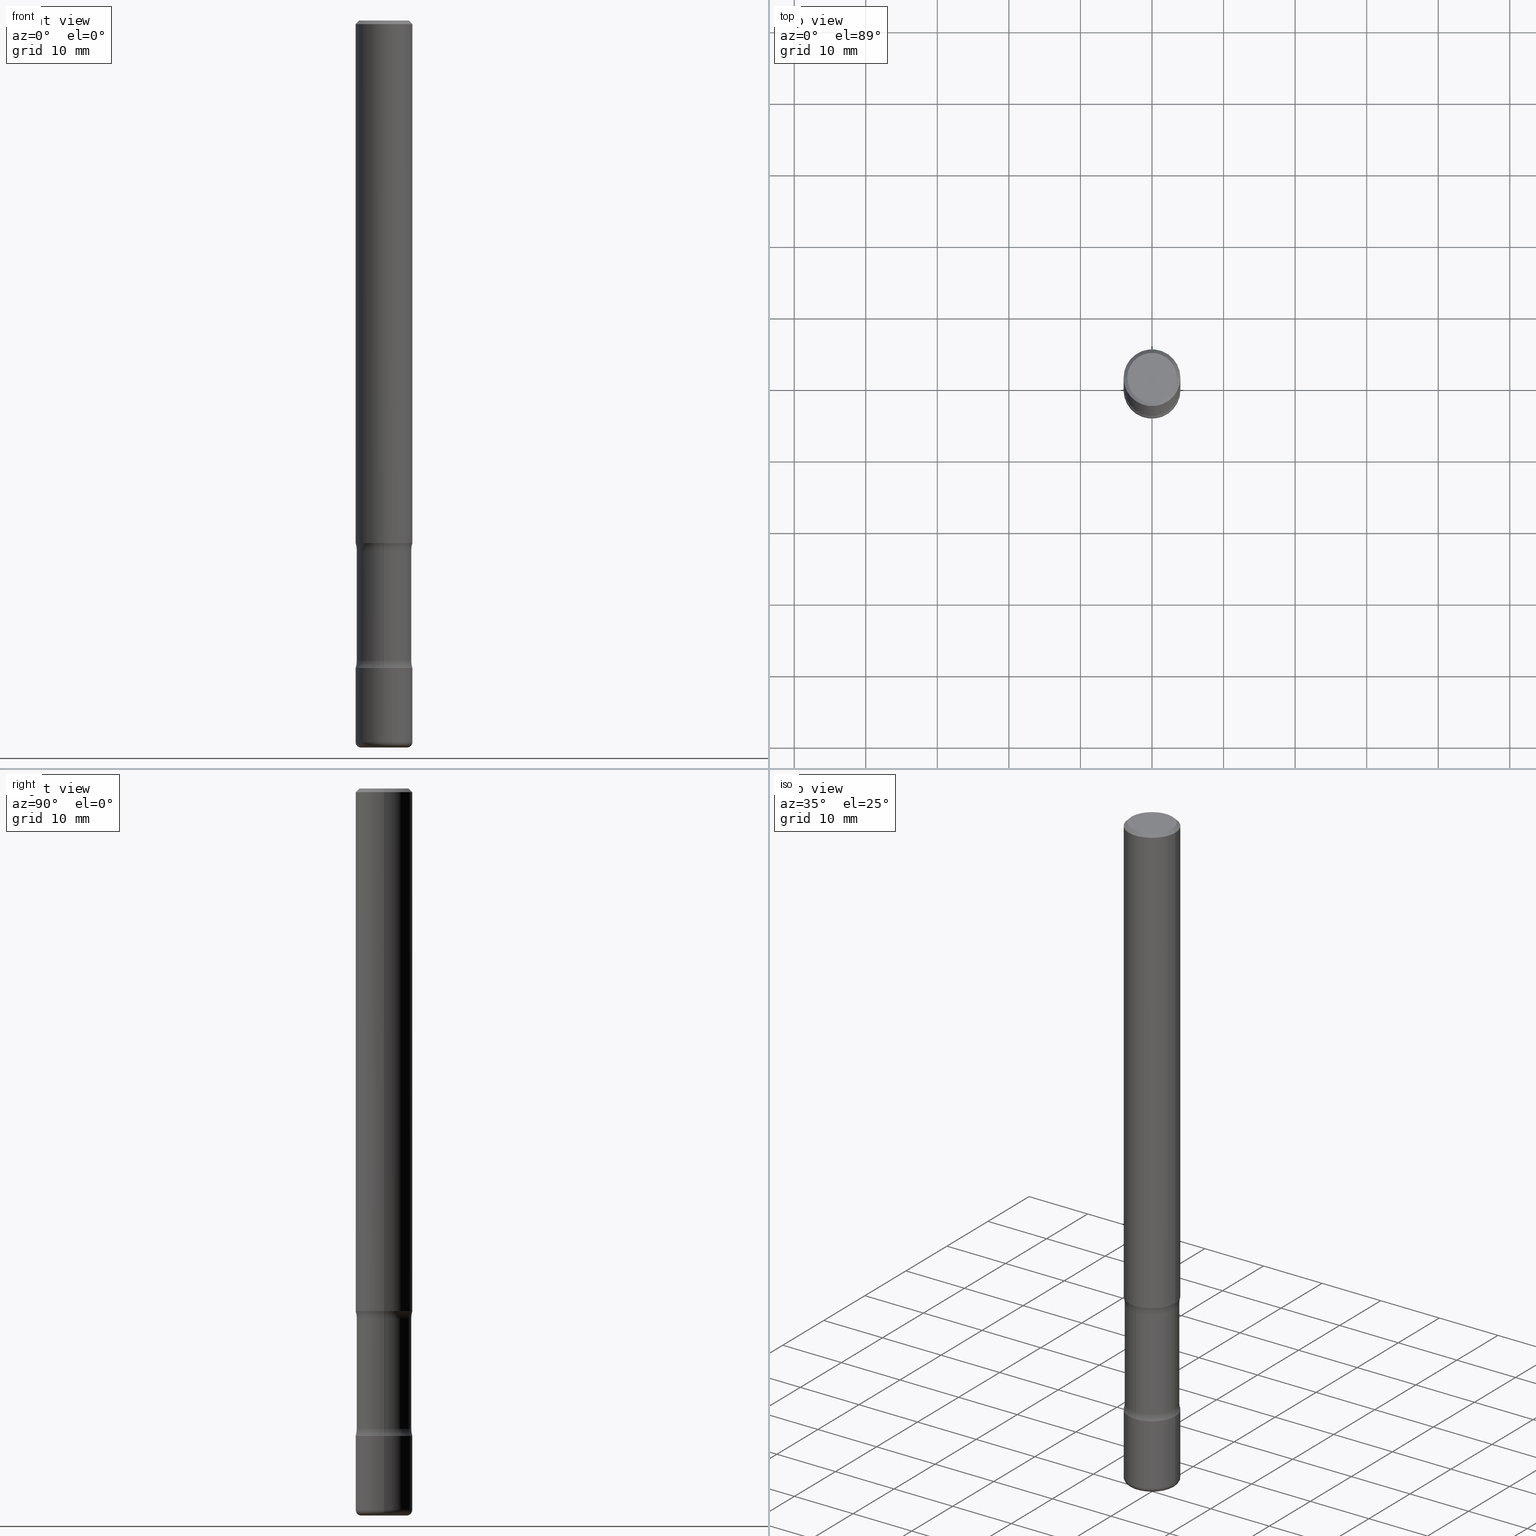
[diagram: canonical four-view strip — front | top / right | iso, engineering-drawing reading convention]
A machine part, canonical four-view strip (front | top / right | iso — engineering-drawing reading convention). The complete STEP part file that produces these views, byte-faithful:
ISO-10303-21;
HEADER;
FILE_DESCRIPTION (( 'STEP AP203' ),
    '1' );
FILE_NAME ('32823.STEP',
    '2023-03-11T07:04:22',
    ( '' ),
    ( '' ),
    'SwSTEP 2.0',
    'SolidWorks 2022',
    '' );
FILE_SCHEMA (( 'CONFIG_CONTROL_DESIGN' ));
ENDSEC;

DATA;
#1 = AXIS2_PLACEMENT_3D ( 'NONE', #409, #658, #91 ) ;
#2 = VECTOR ( 'NONE', #72, 39.37007874015748143 ) ;
#3 = VERTEX_POINT ( 'NONE', #272 ) ;
#4 = PRODUCT ( '32823', '32823', '', ( #490 ) ) ;
#5 = DIRECTION ( 'NONE',  ( 1.000000000000000000, -6.982962677686266711E-15, 4.876176775795936353E-29 ) ) ;
#6 = DIRECTION ( 'NONE',  ( 1.000000000000000000, -6.982962677686261977E-15, 0.000000000000000000 ) ) ;
#7 = ORIENTED_EDGE ( 'NONE', *, *, #493, .T. ) ;
#8 = EDGE_CURVE ( 'NONE', #130, #629, #771, .T. ) ;
#9 = DIRECTION ( 'NONE',  ( -2.438088387897960049E-29, 3.491481338843145188E-15, 1.000000000000000000 ) ) ;
#10 = EDGE_LOOP ( 'NONE', ( #670, #105, #129, #269 ) ) ;
#11 = AXIS2_PLACEMENT_3D ( 'NONE', #735, #112, #371 ) ;
#12 = AXIS2_PLACEMENT_3D ( 'NONE', #261, #185, #232 ) ;
#13 = CALENDAR_DATE ( 2023, 11, 3 ) ;
#14 = EDGE_LOOP ( 'NONE', ( #19, #492 ) ) ;
#15 = EDGE_CURVE ( 'NONE', #85, #560, #595, .T. ) ;
#16 = APPROVAL_ROLE ( '' ) ;
#17 = DIRECTION ( 'NONE',  ( -2.447740878910250107E-29, 3.488227601382434089E-15, 1.000000000000000000 ) ) ;
#18 = CARTESIAN_POINT ( 'NONE',  ( -0.1262500000000000011, -1.290991152102879186E-14, -4.000000000000000888 ) ) ;
#19 = ORIENTED_EDGE ( 'NONE', *, *, #471, .F. ) ;
#20 = CARTESIAN_POINT ( 'NONE',  ( -0.1562500000000000000, -3.943696213350291140E-15, -2.875000000000000000 ) ) ;
#21 = ORIENTED_EDGE ( 'NONE', *, *, #730, .T. ) ;
#22 = CARTESIAN_POINT ( 'NONE',  ( -1.029074699665631363E-15, -0.1500000000000139000, -3.996136889874975395 ) ) ;
#23 = AXIS2_PLACEMENT_3D ( 'NONE', #805, #448, #443 ) ;
#24 = SHAPE_DEFINITION_REPRESENTATION ( #251, #417 ) ;
#25 = AXIS2_PLACEMENT_3D ( 'NONE', #108, #432, #555 ) ;
#26 = EDGE_CURVE ( 'NONE', #431, #55, #76, .T. ) ;
#27 = CARTESIAN_POINT ( 'NONE',  ( 7.126172491530842788E-29, -1.017428568650229871E-14, -2.914031237489990378 ) ) ;
#28 = DIRECTION ( 'NONE',  ( 6.982962677686265133E-15, 1.000000000000000000, -3.488227601382433694E-15 ) ) ;
#29 = EDGE_LOOP ( 'NONE', ( #352, #201, #189, #82 ) ) ;
#30 = ORIENTED_EDGE ( 'NONE', *, *, #131, .F. ) ;
#31 = DIRECTION ( 'NONE',  ( 2.445468806185136597E-29, -3.491481338843145583E-15, -1.000000000000000000 ) ) ;
#32 = DIRECTION ( 'NONE',  ( 1.000000000000000000, -6.982962677686266711E-15, 4.876176775795936353E-29 ) ) ;
#33 = DIRECTION ( 'NONE',  ( -2.445468806185136597E-29, 3.491481338843145583E-15, 1.000000000000000000 ) ) ;
#34 = ADVANCED_FACE ( 'NONE', ( #644 ), #73, .T. ) ;
#35 = AXIS2_PLACEMENT_3D ( 'NONE', #605, #434, #614 ) ;
#36 = AXIS2_PLACEMENT_3D ( 'NONE', #721, #402, #532 ) ;
#37 = DIRECTION ( 'NONE',  ( 1.000000000000000000, -6.982962677686262766E-15, 0.000000000000000000 ) ) ;
#38 = DIRECTION ( 'NONE',  ( 6.982962677686265133E-15, 1.000000000000000000, -3.488227601382433694E-15 ) ) ;
#39 = VERTEX_POINT ( 'NONE', #18 ) ;
#40 = DIRECTION ( 'NONE',  ( 6.982962677686265133E-15, 1.000000000000000000, -3.496765431890256920E-15 ) ) ;
#41 = CARTESIAN_POINT ( 'NONE',  ( 9.708511160554992872E-29, -1.386118091520728738E-14, -3.970000000000000195 ) ) ;
#42 = EDGE_CURVE ( 'NONE', #39, #142, #559, .T. ) ;
#43 = CARTESIAN_POINT ( 'NONE',  ( 8.711982622034549126E-29, -1.243840226962870597E-14, -3.562500000000000000 ) ) ;
#44 = COORDINATED_UNIVERSAL_TIME_OFFSET ( 5, 0, .BEHIND. ) ;
#45 = ORIENTED_EDGE ( 'NONE', *, *, #425, .T. ) ;
#46 = EDGE_LOOP ( 'NONE', ( #674, #509, #567, #389 ) ) ;
#47 = DIRECTION ( 'NONE',  ( 6.982962677686265133E-15, 1.000000000000000000, -3.496765431890256920E-15 ) ) ;
#48 = EDGE_LOOP ( 'NONE', ( #575, #774 ) ) ;
#49 = EDGE_CURVE ( 'NONE', #502, #184, #151, .T. ) ;
#50 = TOROIDAL_SURFACE ( 'NONE', #11, 0.2749999999999998557, 0.1250000000000000000 ) ;
#51 = DIRECTION ( 'NONE',  ( 2.447740878910250667E-29, -3.488227601382433694E-15, -1.000000000000000000 ) ) ;
#52 = AXIS2_PLACEMENT_3D ( 'NONE', #41, #236, #297 ) ;
#53 = CARTESIAN_POINT ( 'NONE',  ( -0.1562499999999997780, 1.021258291611614495E-15, -0.02000000000000003511 ) ) ;
#54 = FACE_OUTER_BOUND ( 'NONE', #137, .T. ) ;
#55 = VERTEX_POINT ( 'NONE', #87 ) ;
#56 = DIRECTION ( 'NONE',  ( 2.447740878910250667E-29, -3.488227601382433694E-15, -1.000000000000000000 ) ) ;
#57 = EDGE_CURVE ( 'NONE', #599, #586, #591, .T. ) ;
#58 = DIRECTION ( 'NONE',  ( 6.982962677686266711E-15, 1.000000000000000000, -3.642463991552351747E-15 ) ) ;
#59 = CIRCLE ( 'NONE', #570, 0.1499999999999999667 ) ;
#60 = CARTESIAN_POINT ( 'NONE',  ( 0.1562500000000001388, -1.495226883359576577E-14, -3.970000000000000195 ) ) ;
#61 = CARTESIAN_POINT ( 'NONE',  ( 9.781875224740547508E-29, -1.396592535537258391E-14, -4.000000000000000888 ) ) ;
#62 = CONICAL_SURFACE ( 'NONE', #622, 0.1562499999999997780, 0.7853981633974485010 ) ;
#63 = EDGE_CURVE ( 'NONE', #292, #629, #403, .T. ) ;
#64 = DIRECTION ( 'NONE',  ( 1.000000000000000000, -6.982962677686265133E-15, 0.000000000000000000 ) ) ;
#65 = DIRECTION ( 'NONE',  ( 1.000000000000000000, -6.982962677686261977E-15, 0.000000000000000000 ) ) ;
#66 = ORIENTED_EDGE ( 'NONE', *, *, #216, .T. ) ;
#67 = DIRECTION ( 'NONE',  ( 6.982962677686265133E-15, 1.000000000000000000, -3.496765431890256920E-15 ) ) ;
#68 = ORIENTED_EDGE ( 'NONE', *, *, #216, .F. ) ;
#69 = ADVANCED_FACE ( 'NONE', ( #339 ), #681, .T. ) ;
#70 = DIRECTION ( 'NONE',  ( -6.982962677686265922E-15, -1.000000000000000000, 0.000000000000000000 ) ) ;
#71 = LINE ( 'NONE', #696, #302 ) ;
#72 = DIRECTION ( 'NONE',  ( -2.445468806185136877E-29, 3.491481338843145188E-15, 1.000000000000000000 ) ) ;
#73 = PLANE ( 'NONE',  #635 ) ;
#74 = DIRECTION ( 'NONE',  ( 1.000000000000000000, -6.982962677686264344E-15, 4.883557194083112340E-29 ) ) ;
#75 = ORIENTED_EDGE ( 'NONE', *, *, #233, .T. ) ;
#76 = CIRCLE ( 'NONE', #546, 0.1250000000000000000 ) ;
#77 = AXIS2_PLACEMENT_3D ( 'NONE', #756, #706, #508 ) ;
#78 = AXIS2_PLACEMENT_3D ( 'NONE', #682, #449, #70 ) ;
#79 = PERSON_AND_ORGANIZATION ( #553, #214 ) ;
#80 = DIRECTION ( 'NONE',  ( -2.445468806185136597E-29, 3.491481338843145583E-15, 1.000000000000000000 ) ) ;
#81 = EDGE_CURVE ( 'NONE', #701, #742, #689, .T. ) ;
#82 = ORIENTED_EDGE ( 'NONE', *, *, #425, .F. ) ;
#83 = EDGE_CURVE ( 'NONE', #707, #791, #198, .T. ) ;
#84 = CARTESIAN_POINT ( 'NONE',  ( 7.029160767783751512E-29, -1.004024579367828384E-14, -2.875000000000000000 ) ) ;
#85 = VERTEX_POINT ( 'NONE', #504 ) ;
#86 = ORIENTED_EDGE ( 'NONE', *, *, #718, .F. ) ;
#87 = CARTESIAN_POINT ( 'NONE',  ( -0.1562499999999999722, -1.132817924500354943E-14, -3.562500000000000000 ) ) ;
#88 = CARTESIAN_POINT ( 'NONE',  ( 7.124699123342455301E-29, -1.017639563360698075E-14, -2.914031237489990378 ) ) ;
#89 = EDGE_CURVE ( 'NONE', #301, #184, #71, .T. ) ;
#90 = DATE_TIME_ROLE ( 'classification_date' ) ;
#91 = DIRECTION ( 'NONE',  ( 1.000000000000000000, -6.982962677686262766E-15, 0.000000000000000000 ) ) ;
#92 = DIRECTION ( 'NONE',  ( -2.445468806185136597E-29, 3.491481338843145583E-15, 1.000000000000000000 ) ) ;
#93 = CYLINDRICAL_SURFACE ( 'NONE', #95, 0.1499999999999999389 ) ;
#94 = CARTESIAN_POINT ( 'NONE',  ( 8.616532948285975175E-29, -1.230212543230045036E-14, -3.523468762510010066 ) ) ;
#95 = AXIS2_PLACEMENT_3D ( 'NONE', #455, #664, #645 ) ;
#96 = AXIS2_PLACEMENT_3D ( 'NONE', #165, #195, #368 ) ;
#97 = LOCAL_TIME ( 2, 4, 22.00000000000000000, #413 ) ;
#98 = DIRECTION ( 'NONE',  ( 1.000000000000000000, -6.982962677686266711E-15, 4.876176775795935232E-29 ) ) ;
#99 = EDGE_LOOP ( 'NONE', ( #86, #734, #485, #414 ) ) ;
#100 = CALENDAR_DATE ( 2023, 11, 3 ) ;
#101 = FACE_OUTER_BOUND ( 'NONE', #779, .T. ) ;
#102 = CARTESIAN_POINT ( 'NONE',  ( -0.1562500000000000000, -1.203956856779284013E-14, -3.562500000000000000 ) ) ;
#103 = DIRECTION ( 'NONE',  ( 1.000000000000000000, -6.982962677686262766E-15, 0.000000000000000000 ) ) ;
#104 = CARTESIAN_POINT ( 'NONE',  ( 0.1562500000000000000, -1.352949018801718435E-14, -3.562500000000000000 ) ) ;
#105 = ORIENTED_EDGE ( 'NONE', *, *, #752, .T. ) ;
#106 = ORIENTED_EDGE ( 'NONE', *, *, #233, .F. ) ;
#107 = AXIS2_PLACEMENT_3D ( 'NONE', #296, #117, #552 ) ;
#108 = CARTESIAN_POINT ( 'NONE',  ( 8.616532948285975175E-29, -1.230212543230045036E-14, -3.523468762510010066 ) ) ;
#109 = CIRCLE ( 'NONE', #609, 0.1562500000000000000 ) ;
#110 = AXIS2_PLACEMENT_3D ( 'NONE', #765, #513, #5 ) ;
#111 = DIRECTION ( 'NONE',  ( 1.000000000000000000, -6.860497997771530774E-15, 4.840838726415807908E-29 ) ) ;
#112 = DIRECTION ( 'NONE',  ( -2.445468806185136597E-29, 3.491481338843145583E-15, 1.000000000000000000 ) ) ;
#113 = PERSON_AND_ORGANIZATION ( #553, #214 ) ;
#114 = ORIENTED_EDGE ( 'NONE', *, *, #42, .T. ) ;
#115 = EDGE_CURVE ( 'NONE', #573, #152, #786, .T. ) ;
#116 = EDGE_LOOP ( 'NONE', ( #683, #424, #328, #749 ) ) ;
#117 = DIRECTION ( 'NONE',  ( 2.438088387897960049E-29, -3.491481338843145188E-15, -1.000000000000000000 ) ) ;
#118 = CARTESIAN_POINT ( 'NONE',  ( 7.029160767783751512E-29, -1.004024579367828384E-14, -2.875000000000000000 ) ) ;
#119 =( LENGTH_UNIT ( ) NAMED_UNIT ( * ) SI_UNIT ( $, .METRE. ) );
#120 = CC_DESIGN_DATE_AND_TIME_ASSIGNMENT ( #745, #433, ( #143 ) ) ;
#121 = FACE_OUTER_BOUND ( 'NONE', #514, .T. ) ;
#122 = CIRCLE ( 'NONE', #621, 0.1562499999999997780 ) ;
#123 = APPLICATION_PROTOCOL_DEFINITION ( 'international standard', 'config_control_design', 1994, #669 ) ;
#124 = DIRECTION ( 'NONE',  ( 1.000000000000000000, -6.982962677686262766E-15, 0.000000000000000000 ) ) ;
#125 = VECTOR ( 'NONE', #353, 39.37007874015748143 ) ;
#126 = LOCAL_TIME ( 2, 4, 22.00000000000000000, #44 ) ;
#127 = CARTESIAN_POINT ( 'NONE',  ( 8.616444266475845337E-29, -1.230225242970000905E-14, -3.523468762510010066 ) ) ;
#128 = EDGE_CURVE ( 'NONE', #130, #142, #722, .T. ) ;
#129 = ORIENTED_EDGE ( 'NONE', *, *, #655, .T. ) ;
#130 = VERTEX_POINT ( 'NONE', #60 ) ;
#131 = EDGE_CURVE ( 'NONE', #742, #85, #145, .T. ) ;
#132 = CARTESIAN_POINT ( 'NONE',  ( 1.920314736363808937E-15, 0.2749999999999876987, -3.523468762510010954 ) ) ;
#133 = FACE_OUTER_BOUND ( 'NONE', #262, .T. ) ;
#134 = ORIENTED_EDGE ( 'NONE', *, *, #63, .T. ) ;
#135 = AXIS2_PLACEMENT_3D ( 'NONE', #170, #358, #40 ) ;
#136 = VECTOR ( 'NONE', #156, 39.37007874015748143 ) ;
#137 = EDGE_LOOP ( 'NONE', ( #582, #75, #565, #685 ) ) ;
#138 = CC_DESIGN_APPROVAL ( #782, ( #392 ) ) ;
#139 = ORIENTED_EDGE ( 'NONE', *, *, #412, .T. ) ;
#140 =( NAMED_UNIT ( * ) SI_UNIT ( $, .STERADIAN. ) SOLID_ANGLE_UNIT ( ) );
#141 = DIRECTION ( 'NONE',  ( 2.447740878910250667E-29, -3.488227601382433694E-15, -1.000000000000000000 ) ) ;
#142 = VERTEX_POINT ( 'NONE', #465 ) ;
#143 = PRODUCT_DEFINITION ( 'UNKNOWN', '', #193, #453 ) ;
#144 = CARTESIAN_POINT ( 'NONE',  ( 8.711982622034549126E-29, -1.243840226962870597E-14, -3.562500000000000000 ) ) ;
#145 = CIRCLE ( 'NONE', #428, 0.1249999999999999584 ) ;
#146 = CARTESIAN_POINT ( 'NONE',  ( 0.000000000000000000, 0.000000000000000000, 0.000000000000000000 ) ) ;
#147 = AXIS2_PLACEMENT_3D ( 'NONE', #726, #672, #602 ) ;
#148 = AXIS2_PLACEMENT_3D ( 'NONE', #144, #542, #209 ) ;
#149 = CC_DESIGN_SECURITY_CLASSIFICATION ( #392, ( #193 ) ) ;
#150 = CARTESIAN_POINT ( 'NONE',  ( 0.1499999999999999667, -1.334956983395339036E-14, -3.523468762510010066 ) ) ;
#151 = LINE ( 'NONE', #406, #533 ) ;
#152 = VERTEX_POINT ( 'NONE', #349 ) ;
#153 = DIRECTION ( 'NONE',  ( 2.447740878910250667E-29, -3.488227601382433694E-15, -1.000000000000000000 ) ) ;
#154 = CARTESIAN_POINT ( 'NONE',  ( -0.2749999999999999667, -1.034813290896017548E-14, -3.523468762510010066 ) ) ;
#155 = APPROVAL_ROLE ( '' ) ;
#156 = DIRECTION ( 'NONE',  ( -2.445468806185136877E-29, 3.491481338843145188E-15, 1.000000000000000000 ) ) ;
#157 = DIRECTION ( 'NONE',  ( 1.000000000000000000, -6.982962677686262766E-15, 0.000000000000000000 ) ) ;
#158 = EDGE_CURVE ( 'NONE', #184, #369, #122, .T. ) ;
#159 = FACE_OUTER_BOUND ( 'NONE', #548, .T. ) ;
#160 = CLOSED_SHELL ( 'NONE', ( #259, #202, #172, #527, #34, #702, #319, #626 ) ) ;
#161 = EDGE_CURVE ( 'NONE', #629, #292, #497, .T. ) ;
#162 = AXIS2_PLACEMENT_3D ( 'NONE', #146, #587, #520 ) ;
#163 = AXIS2_PLACEMENT_3D ( 'NONE', #474, #351, #28 ) ;
#164 = LINE ( 'NONE', #662, #441 ) ;
#165 = CARTESIAN_POINT ( 'NONE',  ( 8.616532948285975175E-29, -1.230212543230045036E-14, -3.523468762510010066 ) ) ;
#166 = LINE ( 'NONE', #671, #125 ) ;
#167 = ADVANCED_FACE ( 'NONE', ( #298 ), #564, .F. ) ;
#168 = CARTESIAN_POINT ( 'NONE',  ( 0.1562500000000000278, -1.112909676756252307E-14, -2.875000000000000000 ) ) ;
#169 = CARTESIAN_POINT ( 'NONE',  ( 7.030722817782267716E-29, -1.003800884917404311E-14, -2.875000000000000000 ) ) ;
#170 = CARTESIAN_POINT ( 'NONE',  ( 8.711982622034549126E-29, -1.243840226962870597E-14, -3.562500000000000000 ) ) ;
#171 = ORIENTED_EDGE ( 'NONE', *, *, #493, .F. ) ;
#172 = ADVANCED_FACE ( 'NONE', ( #792 ), #50, .F. ) ;
#173 = MANIFOLD_SOLID_BREP ( 'Body-Move/Copy2[2]', #326 ) ;
#174 = DIRECTION ( 'NONE',  ( 2.438088387897960049E-29, -3.491481338843145188E-15, -1.000000000000000000 ) ) ;
#175 = EDGE_LOOP ( 'NONE', ( #246, #494, #719, #631 ) ) ;
#176 = ORIENTED_EDGE ( 'NONE', *, *, #499, .F. ) ;
#177 = VERTEX_POINT ( 'NONE', #235 ) ;
#178 = VECTOR ( 'NONE', #276, 39.37007874015748143 ) ;
#179 = AXIS2_PLACEMENT_3D ( 'NONE', #421, #524, #325 ) ;
#180 = TOROIDAL_SURFACE ( 'NONE', #163, 0.2749999999999998557, 0.1250000000000000000 ) ;
#181 = DIRECTION ( 'NONE',  ( 1.000000000000000000, -6.982962677686270655E-15, 0.000000000000000000 ) ) ;
#182 = MANIFOLD_SOLID_BREP ( 'Body-Move/Copy2[3]', #160 ) ;
#183 = DIRECTION ( 'NONE',  ( 1.000000000000000000, -6.982962677686270655E-15, 0.000000000000000000 ) ) ;
#184 = VERTEX_POINT ( 'NONE', #247 ) ;
#185 = DIRECTION ( 'NONE',  ( -2.445468806185136597E-29, 3.491481338843145583E-15, 1.000000000000000000 ) ) ;
#186 = DIRECTION ( 'NONE',  ( 0.000000000000000000, 0.000000000000000000, 1.000000000000000000 ) ) ;
#187 = CARTESIAN_POINT ( 'NONE',  ( 1.060507275655426835E-27, -1.514123326085062918E-13, -43.36621563003245683 ) ) ;
#188 = PLANE ( 'NONE',  #35 ) ;
#189 = ORIENTED_EDGE ( 'NONE', *, *, #15, .F. ) ;
#190 = FACE_OUTER_BOUND ( 'NONE', #576, .T. ) ;
#191 = AXIS2_PLACEMENT_3D ( 'NONE', #699, #761, #385 ) ;
#192 = CIRCLE ( 'NONE', #228, 0.1249999999999999584 ) ;
#193 = PRODUCT_DEFINITION_FORMATION_WITH_SPECIFIED_SOURCE ( 'ANY', '', #4, .NOT_KNOWN. ) ;
#194 = EDGE_CURVE ( 'NONE', #447, #431, #607, .T. ) ;
#195 = DIRECTION ( 'NONE',  ( 2.447740878910250667E-29, -3.488227601382433694E-15, -1.000000000000000000 ) ) ;
#196 = ORIENTED_EDGE ( 'NONE', *, *, #83, .F. ) ;
#197 = LENGTH_MEASURE_WITH_UNIT ( LENGTH_MEASURE( 0.02539999999999999897 ), #119 );
#198 = CIRCLE ( 'NONE', #460, 0.1106250000000000150 ) ;
#199 = FACE_BOUND ( 'NONE', #48, .T. ) ;
#200 = TOROIDAL_SURFACE ( 'NONE', #661, 0.2749999999999998557, 0.1250000000000000000 ) ;
#201 = ORIENTED_EDGE ( 'NONE', *, *, #796, .T. ) ;
#202 = ADVANCED_FACE ( 'NONE', ( #687 ), #737, .F. ) ;
#203 = CARTESIAN_POINT ( 'NONE',  ( 7.030722817782267716E-29, -1.003800884917404311E-14, -2.875000000000000000 ) ) ;
#204 = DIRECTION ( 'NONE',  ( -2.445468806185136597E-29, 3.491481338843145583E-15, 1.000000000000000000 ) ) ;
#205 = ADVANCED_FACE ( 'NONE', ( #54 ), #439, .T. ) ;
#206 = PLANE ( 'NONE',  #148 ) ;
#207 = DIRECTION ( 'NONE',  ( -2.445468806185136597E-29, 3.491481338843145583E-15, 1.000000000000000000 ) ) ;
#208 = EDGE_CURVE ( 'NONE', #152, #586, #59, .T. ) ;
#209 = DIRECTION ( 'NONE',  ( -1.000000000000000000, 6.982962677686265922E-15, -4.876176775795935793E-29 ) ) ;
#210 = ORIENTED_EDGE ( 'NONE', *, *, #512, .F. ) ;
#211 = CIRCLE ( 'NONE', #314, 0.1262500000000000011 ) ;
#212 = FACE_OUTER_BOUND ( 'NONE', #10, .T. ) ;
#213 = AXIS2_PLACEMENT_3D ( 'NONE', #169, #676, #558 ) ;
#214 = ORGANIZATION ( 'UNSPECIFIED', 'UNSPECIFIED', '' ) ;
#215 = DIRECTION ( 'NONE',  ( -6.982962677686265922E-15, -1.000000000000000000, 3.488227601382434089E-15 ) ) ;
#216 = EDGE_CURVE ( 'NONE', #394, #301, #487, .T. ) ;
#217 = CARTESIAN_POINT ( 'NONE',  ( -1.071952812151714440E-15, -0.1562500000000124067, -3.562499999999999556 ) ) ;
#218 = ORIENTED_EDGE ( 'NONE', *, *, #89, .F. ) ;
#219 = DATE_AND_TIME ( #401, #679 ) ;
#220 = EDGE_CURVE ( 'NONE', #416, #177, #475, .T. ) ;
#221 = FACE_OUTER_BOUND ( 'NONE', #175, .T. ) ;
#222 = ORIENTED_EDGE ( 'NONE', *, *, #507, .F. ) ;
#223 = DIRECTION ( 'NONE',  ( 2.445468806185136597E-29, -3.491481338843145583E-15, -1.000000000000000000 ) ) ;
#224 = CARTESIAN_POINT ( 'NONE',  ( 9.781875224740546387E-29, -1.396592535537258233E-14, -4.000000000000000000 ) ) ;
#225 = DIRECTION ( 'NONE',  ( -1.000000000000000000, 6.982962677686266711E-15, 0.000000000000000000 ) ) ;
#226 = EDGE_CURVE ( 'NONE', #586, #152, #798, .T. ) ;
#227 = AXIS2_PLACEMENT_3D ( 'NONE', #187, #31, #225 ) ;
#228 = AXIS2_PLACEMENT_3D ( 'NONE', #684, #239, #478 ) ;
#229 = CARTESIAN_POINT ( 'NONE',  ( -1.300238029662171365E-17, -1.395243737846116396E-14, -3.996136889874975839 ) ) ;
#230 = EDGE_LOOP ( 'NONE', ( #444, #613, #592, #678 ) ) ;
#231 = ORIENTED_EDGE ( 'NONE', *, *, #26, .T. ) ;
#232 = DIRECTION ( 'NONE',  ( 1.000000000000000000, -6.982962677686266711E-15, 4.876176775795935232E-29 ) ) ;
#233 = EDGE_CURVE ( 'NONE', #39, #618, #211, .T. ) ;
#234 = FACE_OUTER_BOUND ( 'NONE', #797, .T. ) ;
#235 = CARTESIAN_POINT ( 'NONE',  ( 1.091087918388549579E-15, 0.1562499999999900080, -2.875000000000000444 ) ) ;
#236 = DIRECTION ( 'NONE',  ( -2.445468806185136597E-29, 3.491481338843145583E-15, 1.000000000000000000 ) ) ;
#237 = FACE_OUTER_BOUND ( 'NONE', #230, .T. ) ;
#238 = ORIENTED_EDGE ( 'NONE', *, *, #49, .F. ) ;
#239 = DIRECTION ( 'NONE',  ( 7.105427357601001859E-15, 1.000000000000000000, -3.491481338843145583E-15 ) ) ;
#240 = AXIS2_PLACEMENT_3D ( 'NONE', #709, #260, #381 ) ;
#241 = AXIS2_PLACEMENT_3D ( 'NONE', #693, #321, #64 ) ;
#242 = ADVANCED_FACE ( 'NONE', ( #212 ), #93, .T. ) ;
#243 = AXIS2_PLACEMENT_3D ( 'NONE', #708, #186, #322 ) ;
#244 = ADVANCED_FACE ( 'NONE', ( #273 ), #526, .T. ) ;
#245 = CARTESIAN_POINT ( 'NONE',  ( 7.126172491530842788E-29, -1.017428568650229871E-14, -2.914031237489990378 ) ) ;
#246 = ORIENTED_EDGE ( 'NONE', *, *, #691, .F. ) ;
#247 = CARTESIAN_POINT ( 'NONE',  ( 0.1562499999999997780, -1.141782438928663133E-15, -0.02000000000000003511 ) ) ;
#248 = CARTESIAN_POINT ( 'NONE',  ( 7.124699123342455301E-29, -1.017639563360698075E-14, -2.914031237489990378 ) ) ;
#249 = VERTEX_POINT ( 'NONE', #217 ) ;
#250 = ORIENTED_EDGE ( 'NONE', *, *, #8, .F. ) ;
#251 = PRODUCT_DEFINITION_SHAPE ( 'NONE', 'NONE',  #143 ) ;
#252 = DIRECTION ( 'NONE',  ( 6.982962677686266711E-15, 1.000000000000000000, -3.642463991552351747E-15 ) ) ;
#253 = ORIENTED_EDGE ( 'NONE', *, *, #436, .F. ) ;
#254 = AXIS2_PLACEMENT_3D ( 'NONE', #753, #736, #489 ) ;
#255 = AXIS2_PLACEMENT_3D ( 'NONE', #529, #17, #215 ) ;
#256 = CIRCLE ( 'NONE', #799, 0.1562500000000000000 ) ;
#257 = PLANE ( 'NONE',  #77 ) ;
#258 = ORIENTED_EDGE ( 'NONE', *, *, #194, .F. ) ;
#259 = ADVANCED_FACE ( 'NONE', ( #581 ), #467, .T. ) ;
#260 = DIRECTION ( 'NONE',  ( -2.445468806185136597E-29, 3.491481338843145583E-15, 1.000000000000000000 ) ) ;
#261 = CARTESIAN_POINT ( 'NONE',  ( 0.000000000000000000, 0.000000000000000000, 0.000000000000000000 ) ) ;
#262 = EDGE_LOOP ( 'NONE', ( #577, #657, #196 ) ) ;
#263 = CYLINDRICAL_SURFACE ( 'NONE', #110, 0.1562499999999998612 ) ;
#264 = FACE_OUTER_BOUND ( 'NONE', #585, .T. ) ;
#265 = PRODUCT_RELATED_PRODUCT_CATEGORY ( 'detail', '', ( #4 ) ) ;
#266 = CIRCLE ( 'NONE', #775, 0.1250000000000000000 ) ;
#267 = EDGE_CURVE ( 'NONE', #447, #3, #266, .T. ) ;
#268 = VECTOR ( 'NONE', #724, 39.37007874015748143 ) ;
#269 = ORIENTED_EDGE ( 'NONE', *, *, #226, .F. ) ;
#270 = AXIS2_PLACEMENT_3D ( 'NONE', #608, #174, #543 ) ;
#271 = DATE_AND_TIME ( #13, #549 ) ;
#272 = CARTESIAN_POINT ( 'NONE',  ( 0.1562499999999999722, -1.352949018801718435E-14, -3.562500000000000000 ) ) ;
#273 = FACE_OUTER_BOUND ( 'NONE', #400, .T. ) ;
#274 = PLANE ( 'NONE',  #255 ) ;
#275 = APPROVAL_STATUS ( 'not_yet_approved' ) ;
#276 = DIRECTION ( 'NONE',  ( 2.447740878910250667E-29, -3.488227601382434089E-15, -1.000000000000000000 ) ) ;
#277 = AXIS2_PLACEMENT_3D ( 'NONE', #245, #803, #503 ) ;
#278 = CIRCLE ( 'NONE', #463, 0.1562500000000000000 ) ;
#279 = CARTESIAN_POINT ( 'NONE',  ( 0.1262500000000000011, -1.474277995326517903E-14, -3.970000000000000195 ) ) ;
#280 = DIRECTION ( 'NONE',  ( 7.105427357601001859E-15, 1.000000000000000000, -3.491481338843145583E-15 ) ) ;
#281 = CARTESIAN_POINT ( 'NONE',  ( 1.091087918388565948E-15, 0.1562499999999875377, -3.562500000000000444 ) ) ;
#282 = APPROVAL_STATUS ( 'not_yet_approved' ) ;
#283 = FACE_OUTER_BOUND ( 'NONE', #458, .T. ) ;
#284 = CARTESIAN_POINT ( 'NONE',  ( 0.1562500000000000000, -1.091087918388479174E-15, 7.619026212181150377E-30 ) ) ;
#285 = LINE ( 'NONE', #788, #268 ) ;
#286 = COORDINATED_UNIVERSAL_TIME_OFFSET ( 5, 0, .BEHIND. ) ;
#287 = ADVANCED_FACE ( 'NONE', ( #159 ), #579, .F. ) ;
#288 = DIRECTION ( 'NONE',  ( -2.445468806185136597E-29, 3.491481338843145583E-15, 1.000000000000000000 ) ) ;
#289 = FACE_OUTER_BOUND ( 'NONE', #46, .T. ) ;
#290 = AXIS2_PLACEMENT_3D ( 'NONE', #43, #363, #103 ) ;
#291 = CIRCLE ( 'NONE', #450, 0.1562500000000000000 ) ;
#292 = VERTEX_POINT ( 'NONE', #102 ) ;
#293 = CARTESIAN_POINT ( 'NONE',  ( -0.1562499999999998612, 1.110223024625155554E-15, -7.685836078523284153E-30 ) ) ;
#294 = EDGE_LOOP ( 'NONE', ( #688, #114, #643, #253 ) ) ;
#295 = EDGE_CURVE ( 'NONE', #573, #249, #376, .T. ) ;
#296 = CARTESIAN_POINT ( 'NONE',  ( 9.514286648347517883E-16, 0.1362499999999997324, -4.757143324173775705E-16 ) ) ;
#297 = DIRECTION ( 'NONE',  ( 1.000000000000000000, -6.982962677686262766E-15, 0.000000000000000000 ) ) ;
#298 = FACE_OUTER_BOUND ( 'NONE', #335, .T. ) ;
#299 = EDGE_CURVE ( 'NONE', #757, #369, #309, .T. ) ;
#300 = CALENDAR_DATE ( 2023, 11, 3 ) ;
#301 = VERTEX_POINT ( 'NONE', #755 ) ;
#302 = VECTOR ( 'NONE', #320, 39.37007874015748143 ) ;
#303 = TOROIDAL_SURFACE ( 'NONE', #96, 0.2749999999999999667, 0.1250000000000000278 ) ;
#304 = EDGE_LOOP ( 'NONE', ( #530, #66, #733, #176 ) ) ;
#305 = EDGE_CURVE ( 'NONE', #249, #586, #327, .T. ) ;
#306 = DIRECTION ( 'NONE',  ( 2.447740878910250667E-29, -3.488227601382433694E-15, -1.000000000000000000 ) ) ;
#307 = FACE_OUTER_BOUND ( 'NONE', #14, .T. ) ;
#308 = DIRECTION ( 'NONE',  ( 6.982962677686265922E-15, 1.000000000000000000, -3.642463991552353325E-15 ) ) ;
#309 = LINE ( 'NONE', #386, #341 ) ;
#310 = ORIENTED_EDGE ( 'NONE', *, *, #479, .T. ) ;
#311 = VERTEX_POINT ( 'NONE', #464 ) ;
#312 = ADVANCED_FACE ( 'NONE', ( #307 ), #188, .F. ) ;
#313 = ORIENTED_EDGE ( 'NONE', *, *, #208, .F. ) ;
#314 = AXIS2_PLACEMENT_3D ( 'NONE', #758, #636, #65 ) ;
#315 = AXIS2_PLACEMENT_3D ( 'NONE', #630, #223, #354 ) ;
#316 = DIRECTION ( 'NONE',  ( -2.445468806185136597E-29, 3.491481338843145583E-15, 1.000000000000000000 ) ) ;
#317 = ORIENTED_EDGE ( 'NONE', *, *, #588, .F. ) ;
#318 = CARTESIAN_POINT ( 'NONE',  ( 0.1362499999999997324, -1.038262645562516349E-15, 6.957025900226682464E-30 ) ) ;
#319 = ADVANCED_FACE ( 'NONE', ( #190 ), #561, .F. ) ;
#320 = DIRECTION ( 'NONE',  ( -2.445468806185136877E-29, 3.491481338843145188E-15, 1.000000000000000000 ) ) ;
#321 = DIRECTION ( 'NONE',  ( -2.445468806185136597E-29, 3.491481338843145583E-15, 1.000000000000000000 ) ) ;
#322 = DIRECTION ( 'NONE',  ( 1.000000000000000000, 0.000000000000000000, 0.000000000000000000 ) ) ;
#323 = ORIENTED_EDGE ( 'NONE', *, *, #344, .T. ) ;
#324 = APPROVAL_STATUS ( 'not_yet_approved' ) ;
#325 = DIRECTION ( 'NONE',  ( 1.000000000000000000, -6.982962677686272233E-15, 0.000000000000000000 ) ) ;
#326 = CLOSED_SHELL ( 'NONE', ( #468, #411, #640, #167, #767, #744 ) ) ;
#327 = CIRCLE ( 'NONE', #191, 0.1250000000000000278 ) ;
#328 = ORIENTED_EDGE ( 'NONE', *, *, #220, .T. ) ;
#329 = ADVANCED_FACE ( 'NONE', ( #556 ), #795, .T. ) ;
#330 = CIRCLE ( 'NONE', #535, 0.1250000000000000000 ) ;
#331 = ORIENTED_EDGE ( 'NONE', *, *, #267, .F. ) ;
#332 = DIRECTION ( 'NONE',  ( 2.447740878910250667E-29, -3.488227601382433694E-15, -1.000000000000000000 ) ) ;
#333 = PERSON_AND_ORGANIZATION_ROLE ( 'design_supplier' ) ;
#334 = CARTESIAN_POINT ( 'NONE',  ( -1.071952812151731598E-15, -0.1562500000000100753, -2.874999999999999112 ) ) ;
#335 = EDGE_LOOP ( 'NONE', ( #7, #759 ) ) ;
#336 = ORIENTED_EDGE ( 'NONE', *, *, #796, .F. ) ;
#337 = DIRECTION ( 'NONE',  ( 6.982962677686265922E-15, 1.000000000000000000, -3.642463991552353325E-15 ) ) ;
#338 = SECURITY_CLASSIFICATION_LEVEL ( 'unclassified' ) ;
#339 = FACE_OUTER_BOUND ( 'NONE', #410, .T. ) ;
#340 = CARTESIAN_POINT ( 'NONE',  ( 7.030722817782267716E-29, -1.003800884917404311E-14, -2.875000000000000000 ) ) ;
#341 = VECTOR ( 'NONE', #628, 39.37007874015748143 ) ;
#342 = ORIENTED_EDGE ( 'NONE', *, *, #115, .F. ) ;
#343 = CIRCLE ( 'NONE', #612, 0.03000000000000024175 ) ;
#344 = EDGE_CURVE ( 'NONE', #701, #560, #192, .T. ) ;
#345 = EDGE_LOOP ( 'NONE', ( #336, #536, #45, #356 ) ) ;
#346 = CARTESIAN_POINT ( 'NONE',  ( 8.616532948285975175E-29, -1.230212543230045036E-14, -3.523468762510010066 ) ) ;
#347 = DIMENSIONAL_EXPONENTS ( 1.000000000000000000, 0.000000000000000000, 0.000000000000000000, 0.000000000000000000, 0.000000000000000000, 0.000000000000000000, 0.000000000000000000 ) ;
#348 = APPROVAL ( #324, 'UNSPECIFIED' ) ;
#349 = CARTESIAN_POINT ( 'NONE',  ( 1.047444401653025795E-15, 0.1499999999999876710, -3.523468762510010510 ) ) ;
#350 = EDGE_CURVE ( 'NONE', #452, #707, #166, .T. ) ;
#351 = DIRECTION ( 'NONE',  ( 2.447740878910250667E-29, -3.488227601382433694E-15, -1.000000000000000000 ) ) ;
#352 = ORIENTED_EDGE ( 'NONE', *, *, #194, .T. ) ;
#353 = DIRECTION ( 'NONE',  ( 0.9993908270190959842, -6.978169709227526500E-15, -0.03489949670249641728 ) ) ;
#354 = DIRECTION ( 'NONE',  ( -1.000000000000000000, 6.982962677686266711E-15, 0.000000000000000000 ) ) ;
#355 = CARTESIAN_POINT ( 'NONE',  ( 4.890937612370281041E-31, -6.982962677686302702E-17, -0.02000000000000003511 ) ) ;
#356 = ORIENTED_EDGE ( 'NONE', *, *, #412, .F. ) ;
#357 = ADVANCED_FACE ( 'NONE', ( #289 ), #501, .F. ) ;
#358 = DIRECTION ( 'NONE',  ( 2.447740878910250667E-29, -3.488227601382433694E-15, -1.000000000000000000 ) ) ;
#359 = AXIS2_PLACEMENT_3D ( 'NONE', #27, #207, #399 ) ;
#360 = ORIENTED_EDGE ( 'NONE', *, *, #26, .F. ) ;
#361 = CIRCLE ( 'NONE', #213, 0.1562500000000000000 ) ;
#362 = AXIS2_PLACEMENT_3D ( 'NONE', #203, #9, #557 ) ;
#363 = DIRECTION ( 'NONE',  ( -2.445468806185136597E-29, 3.491481338843145583E-15, 1.000000000000000000 ) ) ;
#364 = CIRCLE ( 'NONE', #404, 0.1499999999999999112 ) ;
#365 = CARTESIAN_POINT ( 'NONE',  ( 0.1106250000000002232, -1.472486794637605993E-14, -4.000000000000000000 ) ) ;
#366 = ORIENTED_EDGE ( 'NONE', *, *, #350, .T. ) ;
#367 = EDGE_CURVE ( 'NONE', #311, #599, #751, .T. ) ;
#368 = DIRECTION ( 'NONE',  ( 6.982962677686265133E-15, 1.000000000000000000, -3.488227601382433694E-15 ) ) ;
#369 = VERTEX_POINT ( 'NONE', #53 ) ;
#370 = ORIENTED_EDGE ( 'NONE', *, *, #507, .T. ) ;
#371 = DIRECTION ( 'NONE',  ( 1.000000000000000000, -6.982962677686267499E-15, 4.883557194083112901E-29 ) ) ;
#372 =( CONVERSION_BASED_UNIT ( 'INCH', #197 ) LENGTH_UNIT ( ) NAMED_UNIT ( #347 ) );
#373 = DIRECTION ( 'NONE',  ( -2.445468806185136597E-29, 3.491481338843145583E-15, 1.000000000000000000 ) ) ;
#374 = DIRECTION ( 'NONE',  ( 2.447740878910250667E-29, -3.488227601382433694E-15, -1.000000000000000000 ) ) ;
#375 = ORIENTED_EDGE ( 'NONE', *, *, #161, .T. ) ;
#376 = CIRCLE ( 'NONE', #135, 0.1562500000000000000 ) ;
#377 = AXIS2_PLACEMENT_3D ( 'NONE', #94, #153, #653 ) ;
#378 = ADVANCED_FACE ( 'NONE', ( #470 ), #206, .F. ) ;
#379 = APPROVAL_PERSON_ORGANIZATION ( #113, #348, #578 ) ;
#380 = PLANE ( 'NONE',  #362 ) ;
#381 = DIRECTION ( 'NONE',  ( 1.000000000000000000, -6.982962677686262766E-15, 0.000000000000000000 ) ) ;
#382 = EDGE_LOOP ( 'NONE', ( #442, #323, #139, #30 ) ) ;
#383 = ORIENTED_EDGE ( 'NONE', *, *, #63, .F. ) ;
#384 = EDGE_LOOP ( 'NONE', ( #604, #106 ) ) ;
#385 = DIRECTION ( 'NONE',  ( 6.860497997771529985E-15, 1.000000000000000000, 0.000000000000000000 ) ) ;
#386 = CARTESIAN_POINT ( 'NONE',  ( -0.1562499999999997780, 1.021258291611614495E-15, -0.02000000000000003511 ) ) ;
#387 = EDGE_LOOP ( 'NONE', ( #210, #68 ) ) ;
#388 = FACE_OUTER_BOUND ( 'NONE', #116, .T. ) ;
#389 = ORIENTED_EDGE ( 'NONE', *, *, #208, .T. ) ;
#390 = EDGE_LOOP ( 'NONE', ( #375, #134 ) ) ;
#391 = AXIS2_PLACEMENT_3D ( 'NONE', #500, #422, #37 ) ;
#392 = SECURITY_CLASSIFICATION ( '', '', #338 ) ;
#393 = CARTESIAN_POINT ( 'NONE',  ( 9.708511160554992872E-29, -1.386118091520728738E-14, -3.970000000000000195 ) ) ;
#394 = VERTEX_POINT ( 'NONE', #20 ) ;
#395 = ADVANCED_FACE ( 'NONE', ( #283 ), #274, .F. ) ;
#396 = ORIENTED_EDGE ( 'NONE', *, *, #479, .F. ) ;
#397 = PERSON_AND_ORGANIZATION ( #553, #214 ) ;
#398 = DIRECTION ( 'NONE',  ( -2.445468806185136597E-29, 3.491481338843145583E-15, 1.000000000000000000 ) ) ;
#399 = DIRECTION ( 'NONE',  ( 1.000000000000000000, -6.982962677686272233E-15, 0.000000000000000000 ) ) ;
#400 = EDGE_LOOP ( 'NONE', ( #505, #748, #472, #250 ) ) ;
#401 = CALENDAR_DATE ( 2023, 11, 3 ) ;
#402 = DIRECTION ( 'NONE',  ( 2.445468806185136597E-29, -3.491481338843145583E-15, -1.000000000000000000 ) ) ;
#403 = CIRCLE ( 'NONE', #1, 0.1562500000000000000 ) ;
#404 = AXIS2_PLACEMENT_3D ( 'NONE', #248, #51, #308 ) ;
#405 = PERSON_AND_ORGANIZATION_ROLE ( 'creator' ) ;
#406 = CARTESIAN_POINT ( 'NONE',  ( 0.1562499999999997780, -1.141782438928663133E-15, -0.02000000000000003511 ) ) ;
#407 = APPROVAL_DATE_TIME ( #537, #782 ) ;
#408 = CARTESIAN_POINT ( 'NONE',  ( 9.781507623068248228E-29, -1.393943499816444460E-14, -3.996136889874975839 ) ) ;
#409 = CARTESIAN_POINT ( 'NONE',  ( 8.711982622034549126E-29, -1.243840226962870597E-14, -3.562500000000000000 ) ) ;
#410 = EDGE_LOOP ( 'NONE', ( #569, #697, #313, #789 ) ) ;
#411 = ADVANCED_FACE ( 'NONE', ( #459 ), #649, .T. ) ;
#412 = EDGE_CURVE ( 'NONE', #560, #85, #704, .T. ) ;
#413 = COORDINATED_UNIVERSAL_TIME_OFFSET ( 5, 0, .BEHIND. ) ;
#414 = ORIENTED_EDGE ( 'NONE', *, *, #299, .F. ) ;
#415 = DIRECTION ( 'NONE',  ( 2.447740878910250667E-29, -3.488227601382433694E-15, -1.000000000000000000 ) ) ;
#416 = VERTEX_POINT ( 'NONE', #334 ) ;
#417 = ADVANCED_BREP_SHAPE_REPRESENTATION ( '32823', ( #445, #173, #182, #710, #243 ), #572 ) ;
#418 = EDGE_LOOP ( 'NONE', ( #793, #619, #544, #383 ) ) ;
#419 = CIRCLE ( 'NONE', #52, 0.1562500000000000000 ) ;
#420 = APPROVAL ( #282, 'UNSPECIFIED' ) ;
#421 = CARTESIAN_POINT ( 'NONE',  ( 7.126172491530842788E-29, -1.017428568650229871E-14, -2.914031237489990378 ) ) ;
#422 = DIRECTION ( 'NONE',  ( -2.445468806185136597E-29, 3.491481338843145583E-15, 1.000000000000000000 ) ) ;
#423 = CYLINDRICAL_SURFACE ( 'NONE', #637, 0.1499999999999999389 ) ;
#424 = ORIENTED_EDGE ( 'NONE', *, *, #691, .T. ) ;
#425 = EDGE_CURVE ( 'NONE', #447, #85, #466, .T. ) ;
#426 = FACE_OUTER_BOUND ( 'NONE', #304, .T. ) ;
#427 = CARTESIAN_POINT ( 'NONE',  ( 7.126172491530842788E-29, -1.017428568650229871E-14, -2.914031237489990378 ) ) ;
#428 = AXIS2_PLACEMENT_3D ( 'NONE', #590, #778, #594 ) ;
#429 = CC_DESIGN_PERSON_AND_ORGANIZATION_ASSIGNMENT ( #583, #665, ( #392 ) ) ;
#430 = PERSON_AND_ORGANIZATION ( #553, #214 ) ;
#431 = VERTEX_POINT ( 'NONE', #660 ) ;
#432 = DIRECTION ( 'NONE',  ( -2.445468806185136597E-29, 3.491481338843145583E-15, 1.000000000000000000 ) ) ;
#433 = DATE_TIME_ROLE ( 'creation_date' ) ;
#434 = DIRECTION ( 'NONE',  ( 2.447740878910250107E-29, -3.488227601382434089E-15, -1.000000000000000000 ) ) ;
#435 = ORIENTED_EDGE ( 'NONE', *, *, #267, .T. ) ;
#436 = EDGE_CURVE ( 'NONE', #618, #130, #343, .T. ) ;
#437 = CLOSED_SHELL ( 'NONE', ( #287, #244, #456, #483, #205, #329, #378, #531 ) ) ;
#438 = DIRECTION ( 'NONE',  ( 1.000000000000000000, -6.982962677686264344E-15, 4.883557194083112340E-29 ) ) ;
#439 = TOROIDAL_SURFACE ( 'NONE', #750, 0.1262500000000000011, 0.03000000000000025216 ) ;
#440 = AXIS2_PLACEMENT_3D ( 'NONE', #525, #700, #446 ) ;
#441 = VECTOR ( 'NONE', #550, 39.37007874015748143 ) ;
#442 = ORIENTED_EDGE ( 'NONE', *, *, #81, .F. ) ;
#443 = DIRECTION ( 'NONE',  ( 1.000000000000000000, -6.982962677686265133E-15, 4.883557194083112340E-29 ) ) ;
#444 = ORIENTED_EDGE ( 'NONE', *, *, #344, .F. ) ;
#445 = MANIFOLD_SOLID_BREP ( 'Body-Move/Copy2[1]', #437 ) ;
#446 = DIRECTION ( 'NONE',  ( 1.000000000000000000, -6.982962677686266711E-15, 4.876176775795936353E-29 ) ) ;
#447 = VERTEX_POINT ( 'NONE', #150 ) ;
#448 = DIRECTION ( 'NONE',  ( -2.445468806185136597E-29, 3.491481338843145583E-15, 1.000000000000000000 ) ) ;
#449 = DIRECTION ( 'NONE',  ( -1.000000000000000000, 6.982962677686265922E-15, -4.883557194083112340E-29 ) ) ;
#450 = AXIS2_PLACEMENT_3D ( 'NONE', #510, #398, #124 ) ;
#451 = DIRECTION ( 'NONE',  ( 6.982962677686265133E-15, 1.000000000000000000, -3.496765431890256920E-15 ) ) ;
#452 = VERTEX_POINT ( 'NONE', #408 ) ;
#453 = DESIGN_CONTEXT ( 'detailed design', #669, 'design' ) ;
#454 = CARTESIAN_POINT ( 'NONE',  ( 9.781875224740546387E-29, -1.396592535537258233E-14, -4.000000000000000000 ) ) ;
#455 = CARTESIAN_POINT ( 'NONE',  ( 9.773413363985029631E-29, -1.395102643786823245E-14, -3.996136889874975839 ) ) ;
#456 = ADVANCED_FACE ( 'NONE', ( #538 ), #518, .T. ) ;
#457 = CARTESIAN_POINT ( 'NONE',  ( 7.030722817782267716E-29, -1.003800884917404311E-14, -2.875000000000000000 ) ) ;
#458 = EDGE_LOOP ( 'NONE', ( #481, #310 ) ) ;
#459 = FACE_OUTER_BOUND ( 'NONE', #99, .T. ) ;
#460 = AXIS2_PLACEMENT_3D ( 'NONE', #454, #496, #692 ) ;
#461 = AXIS2_PLACEMENT_3D ( 'NONE', #61, #316, #6 ) ;
#462 = DIRECTION ( 'NONE',  ( -1.000000000000000000, 7.105427357600998703E-15, 0.000000000000000000 ) ) ;
#463 = AXIS2_PLACEMENT_3D ( 'NONE', #473, #720, #157 ) ;
#464 = CARTESIAN_POINT ( 'NONE',  ( 1.047444401653010412E-15, 0.1499999999999897249, -2.914031237489990822 ) ) ;
#465 = CARTESIAN_POINT ( 'NONE',  ( -0.1562500000000001388, -1.275095789058212927E-14, -3.970000000000000195 ) ) ;
#466 = LINE ( 'NONE', #770, #136 ) ;
#467 = CYLINDRICAL_SURFACE ( 'NONE', #762, 0.1499999999999999389 ) ;
#468 = ADVANCED_FACE ( 'NONE', ( #121 ), #639, .T. ) ;
#469 = PERSON_AND_ORGANIZATION ( #553, #214 ) ;
#470 = FACE_OUTER_BOUND ( 'NONE', #390, .T. ) ;
#471 = EDGE_CURVE ( 'NONE', #177, #416, #256, .T. ) ;
#472 = ORIENTED_EDGE ( 'NONE', *, *, #161, .F. ) ;
#473 = CARTESIAN_POINT ( 'NONE',  ( 8.711982622034549126E-29, -1.243840226962870597E-14, -3.562500000000000000 ) ) ;
#474 = CARTESIAN_POINT ( 'NONE',  ( 7.126172491530842788E-29, -1.017428568650229871E-14, -2.914031237489990378 ) ) ;
#475 = CIRCLE ( 'NONE', #703, 0.1562500000000000000 ) ;
#476 = TOROIDAL_SURFACE ( 'NONE', #277, 0.2749999999999998557, 0.1250000000000000000 ) ;
#477 = LOCAL_TIME ( 2, 4, 22.00000000000000000, #286 ) ;
#478 = DIRECTION ( 'NONE',  ( -1.000000000000000000, 7.105427357601006592E-15, 0.000000000000000000 ) ) ;
#479 = EDGE_CURVE ( 'NONE', #249, #573, #109, .T. ) ;
#480 = FACE_OUTER_BOUND ( 'NONE', #345, .T. ) ;
#481 = ORIENTED_EDGE ( 'NONE', *, *, #295, .T. ) ;
#482 = ORIENTED_EDGE ( 'NONE', *, *, #666, .T. ) ;
#483 = ADVANCED_FACE ( 'NONE', ( #568, #199 ), #257, .F. ) ;
#484 = CARTESIAN_POINT ( 'NONE',  ( -1.886636949387098841E-15, -0.2750000000000100697, -2.914031237489989046 ) ) ;
#485 = ORIENTED_EDGE ( 'NONE', *, *, #158, .T. ) ;
#486 = DIRECTION ( 'NONE',  ( -1.000000000000000000, 6.982962677686266711E-15, 0.000000000000000000 ) ) ;
#487 = CIRCLE ( 'NONE', #254, 0.1562500000000000000 ) ;
#488 = AXIS2_PLACEMENT_3D ( 'NONE', #88, #332, #337 ) ;
#489 = DIRECTION ( 'NONE',  ( 1.000000000000000000, -6.982962677686262766E-15, 0.000000000000000000 ) ) ;
#490 = MECHANICAL_CONTEXT ( 'NONE', #495, 'mechanical' ) ;
#491 = EDGE_CURVE ( 'NONE', #618, #39, #787, .T. ) ;
#492 = ORIENTED_EDGE ( 'NONE', *, *, #220, .F. ) ;
#493 = EDGE_CURVE ( 'NONE', #757, #502, #713, .T. ) ;
#494 = ORIENTED_EDGE ( 'NONE', *, *, #367, .F. ) ;
#495 = APPLICATION_CONTEXT ( 'configuration controlled 3d designs of mechanical parts and assemblies' ) ;
#496 = DIRECTION ( 'NONE',  ( -2.445468806185136597E-29, 3.491481338843145583E-15, 1.000000000000000000 ) ) ;
#497 = CIRCLE ( 'NONE', #290, 0.1562500000000000000 ) ;
#498 = AXIS2_PLACEMENT_3D ( 'NONE', #715, #773, #462 ) ;
#499 = EDGE_CURVE ( 'NONE', #369, #184, #571, .T. ) ;
#500 = CARTESIAN_POINT ( 'NONE',  ( 7.030722817782267716E-29, -1.003800884917404311E-14, -2.875000000000000000 ) ) ;
#501 = TOROIDAL_SURFACE ( 'NONE', #377, 0.2749999999999999667, 0.1250000000000000278 ) ;
#502 = VERTEX_POINT ( 'NONE', #318 ) ;
#503 = DIRECTION ( 'NONE',  ( 1.000000000000000000, -6.982962677686267499E-15, 4.883557194083112901E-29 ) ) ;
#504 = CARTESIAN_POINT ( 'NONE',  ( 0.1499999999999999112, -1.122173008815524030E-14, -2.914031237489990378 ) ) ;
#505 = ORIENTED_EDGE ( 'NONE', *, *, #128, .T. ) ;
#506 = ORIENTED_EDGE ( 'NONE', *, *, #611, .F. ) ;
#507 = EDGE_CURVE ( 'NONE', #3, #55, #291, .T. ) ;
#508 = DIRECTION ( 'NONE',  ( 1.000000000000000000, -6.982962677686265922E-15, 4.876176775795935793E-29 ) ) ;
#509 = ORIENTED_EDGE ( 'NONE', *, *, #295, .F. ) ;
#510 = CARTESIAN_POINT ( 'NONE',  ( 8.711982622034549126E-29, -1.243840226962870597E-14, -3.562500000000000000 ) ) ;
#511 = CARTESIAN_POINT ( 'NONE',  ( 0.2749999999999999667, -1.422244016866417370E-14, -3.523468762510010066 ) ) ;
#512 = EDGE_CURVE ( 'NONE', #301, #394, #361, .T. ) ;
#513 = DIRECTION ( 'NONE',  ( -2.445468806185136597E-29, 3.491481338843145583E-15, 1.000000000000000000 ) ) ;
#514 = EDGE_LOOP ( 'NONE', ( #729, #610, #732, #218 ) ) ;
#515 = CLOSED_SHELL ( 'NONE', ( #69, #539, #566, #725, #312, #395, #357, #242 ) ) ;
#516 = FACE_OUTER_BOUND ( 'NONE', #387, .T. ) ;
#517 = AXIS2_PLACEMENT_3D ( 'NONE', #563, #373, #746 ) ;
#518 = TOROIDAL_SURFACE ( 'NONE', #596, 0.1262500000000000011, 0.03000000000000025216 ) ;
#519 = CIRCLE ( 'NONE', #78, 0.1250000000000000000 ) ;
#520 = DIRECTION ( 'NONE',  ( 1.000000000000000000, -6.982962677686266711E-15, 4.876176775795936353E-29 ) ) ;
#521 = DIRECTION ( 'NONE',  ( -6.982962677686265133E-15, -1.000000000000000000, 0.000000000000000000 ) ) ;
#522 = ORIENTED_EDGE ( 'NONE', *, *, #730, .F. ) ;
#523 = DIRECTION ( 'NONE',  ( -6.982962677686266711E-15, -1.000000000000000000, 3.491481338843145583E-15 ) ) ;
#524 = DIRECTION ( 'NONE',  ( -2.445468806185136597E-29, 3.491481338843145583E-15, 1.000000000000000000 ) ) ;
#525 = CARTESIAN_POINT ( 'NONE',  ( 0.000000000000000000, 0.000000000000000000, 0.000000000000000000 ) ) ;
#526 = CYLINDRICAL_SURFACE ( 'NONE', #162, 0.1562500000000000000 ) ;
#527 = ADVANCED_FACE ( 'NONE', ( #237 ), #476, .F. ) ;
#528 = CARTESIAN_POINT ( 'NONE',  ( 4.890937612370281041E-31, -6.982962677686302702E-17, -0.02000000000000003511 ) ) ;
#529 = CARTESIAN_POINT ( 'NONE',  ( 8.711982622034549126E-29, -1.243840226962870597E-14, -3.562500000000000000 ) ) ;
#530 = ORIENTED_EDGE ( 'NONE', *, *, #632, .F. ) ;
#531 = ADVANCED_FACE ( 'NONE', ( #133 ), #547, .F. ) ;
#532 = DIRECTION ( 'NONE',  ( -1.000000000000000000, 6.982962677686266711E-15, 0.000000000000000000 ) ) ;
#533 = VECTOR ( 'NONE', #654, 39.37007874015748143 ) ;
#534 = CIRCLE ( 'NONE', #723, 0.1562500000000000000 ) ;
#535 = AXIS2_PLACEMENT_3D ( 'NONE', #484, #111, #731 ) ;
#536 = ORIENTED_EDGE ( 'NONE', *, *, #611, .T. ) ;
#537 = DATE_AND_TIME ( #100, #97 ) ;
#538 = FACE_OUTER_BOUND ( 'NONE', #294, .T. ) ;
#539 = ADVANCED_FACE ( 'NONE', ( #264 ), #303, .F. ) ;
#540 = CARTESIAN_POINT ( 'NONE',  ( 0.1262500000000000011, -1.484752439343047555E-14, -4.000000000000000888 ) ) ;
#541 = COORDINATED_UNIVERSAL_TIME_OFFSET ( 5, 0, .BEHIND. ) ;
#542 = DIRECTION ( 'NONE',  ( 2.438088387897960049E-29, -3.491481338843145188E-15, -1.000000000000000000 ) ) ;
#543 = DIRECTION ( 'NONE',  ( -1.000000000000000000, 6.982962677686265922E-15, -4.876176775795935793E-29 ) ) ;
#544 = ORIENTED_EDGE ( 'NONE', *, *, #8, .T. ) ;
#545 = DIRECTION ( 'NONE',  ( -2.445468806185136877E-29, 3.491481338843145188E-15, 1.000000000000000000 ) ) ;
#546 = AXIS2_PLACEMENT_3D ( 'NONE', #154, #280, #780 ) ;
#547 = CONICAL_SURFACE ( 'NONE', #315, 1127.411546571627696, 1.535889741755014581 ) ;
#548 = EDGE_LOOP ( 'NONE', ( #317, #366, #668 ) ) ;
#549 = LOCAL_TIME ( 2, 4, 22.00000000000000000, #625 ) ;
#550 = DIRECTION ( 'NONE',  ( -2.445468806185136877E-29, 3.491481338843145188E-15, 1.000000000000000000 ) ) ;
#551 = EDGE_LOOP ( 'NONE', ( #482, #663 ) ) ;
#552 = DIRECTION ( 'NONE',  ( -1.000000000000000000, 6.982962677686265922E-15, -4.876176775795935793E-29 ) ) ;
#553 = PERSON ( 'UNSPECIFIED', 'UNSPECIFIED', 'UNSPECIFIED', ('UNSPECIFIED'), ('UNSPECIFIED'), ('UNSPECIFIED') ) ;
#554 = CARTESIAN_POINT ( 'NONE',  ( 7.030722817782267716E-29, -1.003800884917404311E-14, -2.875000000000000000 ) ) ;
#555 = DIRECTION ( 'NONE',  ( 1.000000000000000000, -6.982962677686265133E-15, 4.883557194083112340E-29 ) ) ;
#556 = FACE_OUTER_BOUND ( 'NONE', #418, .T. ) ;
#557 = DIRECTION ( 'NONE',  ( 1.000000000000000000, -6.982962677686265922E-15, 4.876176775795935793E-29 ) ) ;
#558 = DIRECTION ( 'NONE',  ( 1.000000000000000000, -6.982962677686262766E-15, 0.000000000000000000 ) ) ;
#559 = CIRCLE ( 'NONE', #498, 0.03000000000000024175 ) ;
#560 = VERTEX_POINT ( 'NONE', #601 ) ;
#561 = TOROIDAL_SURFACE ( 'NONE', #25, 0.2749999999999999667, 0.1250000000000000278 ) ;
#562 = ORIENTED_EDGE ( 'NONE', *, *, #299, .T. ) ;
#563 = CARTESIAN_POINT ( 'NONE',  ( 8.616532948285975175E-29, -1.230212543230045036E-14, -3.523468762510010066 ) ) ;
#564 = PLANE ( 'NONE',  #107 ) ;
#565 = ORIENTED_EDGE ( 'NONE', *, *, #436, .T. ) ;
#566 = ADVANCED_FACE ( 'NONE', ( #388 ), #200, .F. ) ;
#567 = ORIENTED_EDGE ( 'NONE', *, *, #115, .T. ) ;
#568 = FACE_OUTER_BOUND ( 'NONE', #384, .T. ) ;
#569 = ORIENTED_EDGE ( 'NONE', *, *, #367, .T. ) ;
#570 = AXIS2_PLACEMENT_3D ( 'NONE', #127, #56, #252 ) ;
#571 = CIRCLE ( 'NONE', #241, 0.1562499999999997780 ) ;
#572 =( GEOMETRIC_REPRESENTATION_CONTEXT ( 3 ) GLOBAL_UNCERTAINTY_ASSIGNED_CONTEXT ( ( #716 ) ) GLOBAL_UNIT_ASSIGNED_CONTEXT ( ( #372, #620, #140 ) ) REPRESENTATION_CONTEXT ( 'NONE', 'WORKASPACE' ) );
#573 = VERTEX_POINT ( 'NONE', #281 ) ;
#574 = CC_DESIGN_PERSON_AND_ORGANIZATION_ASSIGNMENT ( #656, #405, ( #193 ) ) ;
#575 = ORIENTED_EDGE ( 'NONE', *, *, #738, .T. ) ;
#576 = EDGE_LOOP ( 'NONE', ( #360, #258, #435, #370 ) ) ;
#577 = ORIENTED_EDGE ( 'NONE', *, *, #350, .F. ) ;
#578 = APPROVAL_ROLE ( '' ) ;
#579 = CONICAL_SURFACE ( 'NONE', #227, 1127.411546571627696, 1.535889741755014581 ) ;
#580 = CC_DESIGN_APPROVAL ( #420, ( #193 ) ) ;
#581 = FACE_OUTER_BOUND ( 'NONE', #29, .T. ) ;
#582 = ORIENTED_EDGE ( 'NONE', *, *, #42, .F. ) ;
#583 = PERSON_AND_ORGANIZATION ( #553, #214 ) ;
#584 = DIRECTION ( 'NONE',  ( 1.000000000000000000, -6.982962677686276966E-15, 0.000000000000000000 ) ) ;
#585 = EDGE_LOOP ( 'NONE', ( #396, #680, #804, #342 ) ) ;
#586 = VERTEX_POINT ( 'NONE', #673 ) ;
#587 = DIRECTION ( 'NONE',  ( -2.445468806185136597E-29, 3.491481338843145583E-15, 1.000000000000000000 ) ) ;
#588 = EDGE_CURVE ( 'NONE', #452, #791, #603, .T. ) ;
#589 = PERSON_AND_ORGANIZATION ( #553, #214 ) ;
#590 = CARTESIAN_POINT ( 'NONE',  ( 0.2749999999999998557, -1.209460042286602206E-14, -2.914031237489990378 ) ) ;
#591 = LINE ( 'NONE', #22, #178 ) ;
#592 = ORIENTED_EDGE ( 'NONE', *, *, #131, .T. ) ;
#593 = CALENDAR_DATE ( 2023, 11, 3 ) ;
#594 = DIRECTION ( 'NONE',  ( 1.000000000000000000, -6.982962677686265133E-15, 0.000000000000000000 ) ) ;
#595 = CIRCLE ( 'NONE', #359, 0.1499999999999999112 ) ;
#596 = AXIS2_PLACEMENT_3D ( 'NONE', #393, #652, #74 ) ;
#597 = DIRECTION ( 'NONE',  ( -2.445468806185136597E-29, 3.491481338843145583E-15, 1.000000000000000000 ) ) ;
#598 = CC_DESIGN_PERSON_AND_ORGANIZATION_ASSIGNMENT ( #397, #747, ( #4 ) ) ;
#599 = VERTEX_POINT ( 'NONE', #790 ) ;
#600 = PLANE ( 'NONE',  #270 ) ;
#601 = CARTESIAN_POINT ( 'NONE',  ( -0.1499999999999999112, -9.018128703705517816E-15, -2.914031237489990378 ) ) ;
#602 = DIRECTION ( 'NONE',  ( 6.982962677686265922E-15, 1.000000000000000000, -3.642463991552352536E-15 ) ) ;
#603 = LINE ( 'NONE', #229, #677 ) ;
#604 = ORIENTED_EDGE ( 'NONE', *, *, #491, .F. ) ;
#605 = CARTESIAN_POINT ( 'NONE',  ( 7.030722817782267716E-29, -1.003800884917404311E-14, -2.875000000000000000 ) ) ;
#606 = CC_DESIGN_PERSON_AND_ORGANIZATION_ASSIGNMENT ( #79, #333, ( #193 ) ) ;
#607 = CIRCLE ( 'NONE', #517, 0.1499999999999999667 ) ;
#608 = CARTESIAN_POINT ( 'NONE',  ( 8.711982622034549126E-29, -1.243840226962870597E-14, -3.562500000000000000 ) ) ;
#609 = AXIS2_PLACEMENT_3D ( 'NONE', #634, #772, #67 ) ;
#610 = ORIENTED_EDGE ( 'NONE', *, *, #632, .T. ) ;
#611 = EDGE_CURVE ( 'NONE', #431, #447, #740, .T. ) ;
#612 = AXIS2_PLACEMENT_3D ( 'NONE', #279, #717, #584 ) ;
#613 = ORIENTED_EDGE ( 'NONE', *, *, #666, .F. ) ;
#614 = DIRECTION ( 'NONE',  ( 6.982962677686265922E-15, 1.000000000000000000, -3.488227601382434089E-15 ) ) ;
#615 = DIRECTION ( 'NONE',  ( -2.445468806185136597E-29, 3.491481338843145583E-15, 1.000000000000000000 ) ) ;
#616 = EDGE_CURVE ( 'NONE', #142, #130, #419, .T. ) ;
#617 = PERSON_AND_ORGANIZATION_ROLE ( 'creator' ) ;
#618 = VERTEX_POINT ( 'NONE', #540 ) ;
#619 = ORIENTED_EDGE ( 'NONE', *, *, #616, .T. ) ;
#620 =( NAMED_UNIT ( * ) PLANE_ANGLE_UNIT ( ) SI_UNIT ( $, .RADIAN. ) );
#621 = AXIS2_PLACEMENT_3D ( 'NONE', #528, #80, #743 ) ;
#622 = AXIS2_PLACEMENT_3D ( 'NONE', #355, #659, #486 ) ;
#623 = APPROVAL_PERSON_ORGANIZATION ( #589, #420, #155 ) ;
#624 = CARTESIAN_POINT ( 'NONE',  ( 8.616444266475845337E-29, -1.230225242970000905E-14, -3.523468762510010066 ) ) ;
#625 = COORDINATED_UNIVERSAL_TIME_OFFSET ( 5, 0, .BEHIND. ) ;
#626 = ADVANCED_FACE ( 'NONE', ( #480 ), #423, .T. ) ;
#627 = EDGE_LOOP ( 'NONE', ( #506, #231, #21, #331 ) ) ;
#628 = DIRECTION ( 'NONE',  ( -0.7071067811865476838, 2.468850131082258638E-15, -0.7071067811865473507 ) ) ;
#629 = VERTEX_POINT ( 'NONE', #104 ) ;
#630 = CARTESIAN_POINT ( 'NONE',  ( 1.060507275655426835E-27, -1.514123326085062918E-13, -43.36621563003245683 ) ) ;
#631 = ORIENTED_EDGE ( 'NONE', *, *, #471, .T. ) ;
#632 = EDGE_CURVE ( 'NONE', #394, #369, #781, .T. ) ;
#633 = DIRECTION ( 'NONE',  ( -1.000000000000000000, 6.982962677686265922E-15, -4.883557194083112340E-29 ) ) ;
#634 = CARTESIAN_POINT ( 'NONE',  ( 8.711982622034549126E-29, -1.243840226962870597E-14, -3.562500000000000000 ) ) ;
#635 = AXIS2_PLACEMENT_3D ( 'NONE', #457, #711, #651 ) ;
#636 = DIRECTION ( 'NONE',  ( -2.445468806185136597E-29, 3.491481338843145583E-15, 1.000000000000000000 ) ) ;
#637 = AXIS2_PLACEMENT_3D ( 'NONE', #554, #92, #183 ) ;
#638 = CIRCLE ( 'NONE', #714, 0.1362499999999997324 ) ;
#639 = CYLINDRICAL_SURFACE ( 'NONE', #440, 0.1562499999999998612 ) ;
#640 = ADVANCED_FACE ( 'NONE', ( #234 ), #62, .T. ) ;
#641 = APPLICATION_PROTOCOL_DEFINITION ( 'international standard', 'config_control_design', 1994, #495 ) ;
#642 = CC_DESIGN_DATE_AND_TIME_ASSIGNMENT ( #776, #90, ( #392 ) ) ;
#643 = ORIENTED_EDGE ( 'NONE', *, *, #128, .F. ) ;
#644 = FACE_OUTER_BOUND ( 'NONE', #551, .T. ) ;
#645 = DIRECTION ( 'NONE',  ( 6.982962677686265922E-15, 1.000000000000000000, -3.642463991552352536E-15 ) ) ;
#646 = VECTOR ( 'NONE', #783, 39.37007874015748143 ) ;
#647 = APPROVAL_DATE_TIME ( #219, #420 ) ;
#648 = AXIS2_PLACEMENT_3D ( 'NONE', #132, #633, #521 ) ;
#649 = CONICAL_SURFACE ( 'NONE', #36, 0.1562499999999997780, 0.7853981633974485010 ) ;
#650 = APPROVAL_PERSON_ORGANIZATION ( #469, #782, #16 ) ;
#651 = DIRECTION ( 'NONE',  ( 1.000000000000000000, -6.982962677686265922E-15, 4.876176775795935793E-29 ) ) ;
#652 = DIRECTION ( 'NONE',  ( -2.445468806185136597E-29, 3.491481338843145583E-15, 1.000000000000000000 ) ) ;
#653 = DIRECTION ( 'NONE',  ( 6.982962677686265133E-15, 1.000000000000000000, -3.488227601382433694E-15 ) ) ;
#654 = DIRECTION ( 'NONE',  ( 0.7071067811865476838, -7.319954787623257623E-15, -0.7071067811865473507 ) ) ;
#655 = EDGE_CURVE ( 'NONE', #311, #152, #285, .T. ) ;
#656 = PERSON_AND_ORGANIZATION ( #553, #214 ) ;
#657 = ORIENTED_EDGE ( 'NONE', *, *, #588, .T. ) ;
#658 = DIRECTION ( 'NONE',  ( -2.445468806185136597E-29, 3.491481338843145583E-15, 1.000000000000000000 ) ) ;
#659 = DIRECTION ( 'NONE',  ( 2.445468806185136597E-29, -3.491481338843145583E-15, -1.000000000000000000 ) ) ;
#660 = CARTESIAN_POINT ( 'NONE',  ( -0.1499999999999999667, -1.128224528683192507E-14, -3.523468762510010066 ) ) ;
#661 = AXIS2_PLACEMENT_3D ( 'NONE', #427, #415, #38 ) ;
#662 = CARTESIAN_POINT ( 'NONE',  ( -0.1562500000000000000, 1.110223024625156540E-15, -7.685836078523291160E-30 ) ) ;
#663 = ORIENTED_EDGE ( 'NONE', *, *, #81, .T. ) ;
#664 = DIRECTION ( 'NONE',  ( 2.447740878910250667E-29, -3.488227601382433694E-15, -1.000000000000000000 ) ) ;
#665 = PERSON_AND_ORGANIZATION_ROLE ( 'classification_officer' ) ;
#666 = EDGE_CURVE ( 'NONE', #742, #701, #534, .T. ) ;
#667 = CARTESIAN_POINT ( 'NONE',  ( -0.1562500000000000278, -8.927785824548886566E-15, -2.875000000000000000 ) ) ;
#668 = ORIENTED_EDGE ( 'NONE', *, *, #738, .F. ) ;
#669 = APPLICATION_CONTEXT ( 'configuration controlled 3d designs of mechanical parts and assemblies' ) ;
#670 = ORIENTED_EDGE ( 'NONE', *, *, #57, .F. ) ;
#671 = CARTESIAN_POINT ( 'NONE',  ( 1.300238029681716164E-17, -1.395243737846116396E-14, -3.996136889874975839 ) ) ;
#672 = DIRECTION ( 'NONE',  ( 2.447740878910250667E-29, -3.488227601382433694E-15, -1.000000000000000000 ) ) ;
#673 = CARTESIAN_POINT ( 'NONE',  ( -1.050513755908679114E-15, -0.1500000000000122902, -3.523468762510009622 ) ) ;
#674 = ORIENTED_EDGE ( 'NONE', *, *, #305, .F. ) ;
#675 = CARTESIAN_POINT ( 'NONE',  ( 0.000000000000000000, 0.000000000000000000, 0.000000000000000000 ) ) ;
#676 = DIRECTION ( 'NONE',  ( -2.445468806185136597E-29, 3.491481338843145583E-15, 1.000000000000000000 ) ) ;
#677 = VECTOR ( 'NONE', #794, 39.37007874015748143 ) ;
#678 = ORIENTED_EDGE ( 'NONE', *, *, #15, .T. ) ;
#679 = LOCAL_TIME ( 2, 4, 22.00000000000000000, #541 ) ;
#680 = ORIENTED_EDGE ( 'NONE', *, *, #305, .T. ) ;
#681 = CYLINDRICAL_SURFACE ( 'NONE', #147, 0.1499999999999999389 ) ;
#682 = CARTESIAN_POINT ( 'NONE',  ( 1.920314736363793554E-15, 0.2749999999999896971, -2.914031237489991266 ) ) ;
#683 = ORIENTED_EDGE ( 'NONE', *, *, #752, .F. ) ;
#684 = CARTESIAN_POINT ( 'NONE',  ( -0.2749999999999998557, -8.220293163162023835E-15, -2.914031237489990378 ) ) ;
#685 = ORIENTED_EDGE ( 'NONE', *, *, #616, .F. ) ;
#686 = CARTESIAN_POINT ( 'NONE',  ( -0.1362499999999997324, 9.863434782231832402E-16, -6.775751096333125871E-30 ) ) ;
#687 = FACE_OUTER_BOUND ( 'NONE', #627, .T. ) ;
#688 = ORIENTED_EDGE ( 'NONE', *, *, #491, .T. ) ;
#689 = CIRCLE ( 'NONE', #391, 0.1562500000000000000 ) ;
#690 = AXIS2_PLACEMENT_3D ( 'NONE', #346, #288, #739 ) ;
#691 = EDGE_CURVE ( 'NONE', #599, #416, #330, .T. ) ;
#692 = DIRECTION ( 'NONE',  ( 1.000000000000000000, -6.982962677686260400E-15, 0.000000000000000000 ) ) ;
#693 = CARTESIAN_POINT ( 'NONE',  ( 4.890937612370281041E-31, -6.982962677686302702E-17, -0.02000000000000003511 ) ) ;
#694 = CARTESIAN_POINT ( 'NONE',  ( 9.708511160554992872E-29, -1.386118091520728738E-14, -3.970000000000000195 ) ) ;
#695 = EDGE_CURVE ( 'NONE', #142, #292, #164, .T. ) ;
#696 = CARTESIAN_POINT ( 'NONE',  ( 0.1562499999999998612, -1.091087918388478187E-15, 7.619026212181143371E-30 ) ) ;
#697 = ORIENTED_EDGE ( 'NONE', *, *, #57, .T. ) ;
#698 = DIRECTION ( 'NONE',  ( -2.445468806185136597E-29, 3.491481338843145583E-15, 1.000000000000000000 ) ) ;
#699 = CARTESIAN_POINT ( 'NONE',  ( -1.886636949387084642E-15, -0.2750000000000122902, -3.523468762510008734 ) ) ;
#700 = DIRECTION ( 'NONE',  ( -2.445468806185136597E-29, 3.491481338843145583E-15, 1.000000000000000000 ) ) ;
#701 = VERTEX_POINT ( 'NONE', #667 ) ;
#702 = ADVANCED_FACE ( 'NONE', ( #101 ), #600, .T. ) ;
#703 = AXIS2_PLACEMENT_3D ( 'NONE', #118, #374, #47 ) ;
#704 = CIRCLE ( 'NONE', #179, 0.1499999999999999112 ) ;
#705 = LINE ( 'NONE', #802, #2 ) ;
#706 = DIRECTION ( 'NONE',  ( -2.438088387897960049E-29, 3.491481338843145188E-15, 1.000000000000000000 ) ) ;
#707 = VERTEX_POINT ( 'NONE', #365 ) ;
#708 = CARTESIAN_POINT ( 'NONE',  ( 0.000000000000000000, 0.000000000000000000, 0.000000000000000000 ) ) ;
#709 = CARTESIAN_POINT ( 'NONE',  ( 9.708511160554992872E-29, -1.386118091520728738E-14, -3.970000000000000195 ) ) ;
#710 = MANIFOLD_SOLID_BREP ( 'Body-Move/Copy2[4]', #515 ) ;
#711 = DIRECTION ( 'NONE',  ( -2.438088387897960049E-29, 3.491481338843145188E-15, 1.000000000000000000 ) ) ;
#712 = AXIS2_PLACEMENT_3D ( 'NONE', #624, #306, #58 ) ;
#713 = CIRCLE ( 'NONE', #12, 0.1362499999999997324 ) ;
#714 = AXIS2_PLACEMENT_3D ( 'NONE', #675, #615, #98 ) ;
#715 = CARTESIAN_POINT ( 'NONE',  ( -0.1262500000000000011, -1.296412071131016109E-14, -3.970000000000000195 ) ) ;
#716 = UNCERTAINTY_MEASURE_WITH_UNIT (LENGTH_MEASURE( 1.000000000000000082E-05 ), #372, 'distance_accuracy_value', 'NONE');
#717 = DIRECTION ( 'NONE',  ( -6.982962677686266711E-15, -1.000000000000000000, 3.491481338843145583E-15 ) ) ;
#718 = EDGE_CURVE ( 'NONE', #502, #757, #638, .T. ) ;
#719 = ORIENTED_EDGE ( 'NONE', *, *, #754, .T. ) ;
#720 = DIRECTION ( 'NONE',  ( -2.445468806185136597E-29, 3.491481338843145583E-15, 1.000000000000000000 ) ) ;
#721 = CARTESIAN_POINT ( 'NONE',  ( 4.890937612370281041E-31, -6.982962677686302702E-17, -0.02000000000000003511 ) ) ;
#722 = CIRCLE ( 'NONE', #240, 0.1562500000000000000 ) ;
#723 = AXIS2_PLACEMENT_3D ( 'NONE', #340, #597, #784 ) ;
#724 = DIRECTION ( 'NONE',  ( 2.447740878910250667E-29, -3.488227601382434089E-15, -1.000000000000000000 ) ) ;
#725 = ADVANCED_FACE ( 'NONE', ( #221 ), #180, .F. ) ;
#726 = CARTESIAN_POINT ( 'NONE',  ( 9.773413363985029631E-29, -1.395102643786823245E-14, -3.996136889874975839 ) ) ;
#727 = DIRECTION ( 'NONE',  ( 1.000000000000000000, -6.982962677686260400E-15, 0.000000000000000000 ) ) ;
#728 = DIRECTION ( 'NONE',  ( -2.445468806185136597E-29, 3.491481338843145583E-15, 1.000000000000000000 ) ) ;
#729 = ORIENTED_EDGE ( 'NONE', *, *, #512, .T. ) ;
#730 = EDGE_CURVE ( 'NONE', #55, #3, #278, .T. ) ;
#731 = DIRECTION ( 'NONE',  ( 6.860497997771530774E-15, 1.000000000000000000, 0.000000000000000000 ) ) ;
#732 = ORIENTED_EDGE ( 'NONE', *, *, #158, .F. ) ;
#733 = ORIENTED_EDGE ( 'NONE', *, *, #89, .T. ) ;
#734 = ORIENTED_EDGE ( 'NONE', *, *, #49, .T. ) ;
#735 = CARTESIAN_POINT ( 'NONE',  ( 7.126172491530842788E-29, -1.017428568650229871E-14, -2.914031237489990378 ) ) ;
#736 = DIRECTION ( 'NONE',  ( -2.445468806185136597E-29, 3.491481338843145583E-15, 1.000000000000000000 ) ) ;
#737 = TOROIDAL_SURFACE ( 'NONE', #23, 0.2749999999999999667, 0.1250000000000000278 ) ;
#738 = EDGE_CURVE ( 'NONE', #791, #707, #801, .T. ) ;
#739 = DIRECTION ( 'NONE',  ( 1.000000000000000000, -6.982962677686269866E-15, 0.000000000000000000 ) ) ;
#740 = CIRCLE ( 'NONE', #690, 0.1499999999999999667 ) ;
#741 = CC_DESIGN_APPROVAL ( #348, ( #143 ) ) ;
#742 = VERTEX_POINT ( 'NONE', #168 ) ;
#743 = DIRECTION ( 'NONE',  ( 1.000000000000000000, -6.982962677686265133E-15, 0.000000000000000000 ) ) ;
#744 = ADVANCED_FACE ( 'NONE', ( #426 ), #263, .T. ) ;
#745 = DATE_AND_TIME ( #300, #126 ) ;
#746 = DIRECTION ( 'NONE',  ( 1.000000000000000000, -6.982962677686269866E-15, 0.000000000000000000 ) ) ;
#747 = PERSON_AND_ORGANIZATION_ROLE ( 'design_owner' ) ;
#748 = ORIENTED_EDGE ( 'NONE', *, *, #695, .T. ) ;
#749 = ORIENTED_EDGE ( 'NONE', *, *, #754, .F. ) ;
#750 = AXIS2_PLACEMENT_3D ( 'NONE', #694, #698, #438 ) ;
#751 = CIRCLE ( 'NONE', #488, 0.1499999999999999112 ) ;
#752 = EDGE_CURVE ( 'NONE', #599, #311, #364, .T. ) ;
#753 = CARTESIAN_POINT ( 'NONE',  ( 7.030722817782267716E-29, -1.003800884917404311E-14, -2.875000000000000000 ) ) ;
#754 = EDGE_CURVE ( 'NONE', #311, #177, #519, .T. ) ;
#755 = CARTESIAN_POINT ( 'NONE',  ( 0.1562500000000000000, -1.112909676756252307E-14, -2.875000000000000000 ) ) ;
#756 = CARTESIAN_POINT ( 'NONE',  ( 9.781875224740546387E-29, -1.396592535537258233E-14, -4.000000000000000000 ) ) ;
#757 = VERTEX_POINT ( 'NONE', #686 ) ;
#758 = CARTESIAN_POINT ( 'NONE',  ( 9.781875224740547508E-29, -1.396592535537258391E-14, -4.000000000000000888 ) ) ;
#759 = ORIENTED_EDGE ( 'NONE', *, *, #718, .T. ) ;
#760 = CARTESIAN_POINT ( 'NONE',  ( -0.1106250000000002232, -1.319343510915353821E-14, -4.000000000000000000 ) ) ;
#761 = DIRECTION ( 'NONE',  ( 1.000000000000000000, -6.860497997771530774E-15, 4.840838726415807908E-29 ) ) ;
#762 = AXIS2_PLACEMENT_3D ( 'NONE', #766, #204, #181 ) ;
#763 = AXIS2_PLACEMENT_3D ( 'NONE', #785, #728, #32 ) ;
#764 = AXIS2_PLACEMENT_3D ( 'NONE', #224, #33, #727 ) ;
#765 = CARTESIAN_POINT ( 'NONE',  ( 0.000000000000000000, 0.000000000000000000, 0.000000000000000000 ) ) ;
#766 = CARTESIAN_POINT ( 'NONE',  ( 7.030722817782267716E-29, -1.003800884917404311E-14, -2.875000000000000000 ) ) ;
#767 = ADVANCED_FACE ( 'NONE', ( #516 ), #380, .F. ) ;
#768 = DIRECTION ( 'NONE',  ( 1.000000000000000000, -6.982962677686262766E-15, 0.000000000000000000 ) ) ;
#769 = APPROVAL_DATE_TIME ( #271, #348 ) ;
#770 = CARTESIAN_POINT ( 'NONE',  ( 0.1499999999999999389, -1.108545325082698469E-14, -2.875000000000000000 ) ) ;
#771 = LINE ( 'NONE', #284, #646 ) ;
#772 = DIRECTION ( 'NONE',  ( 2.447740878910250667E-29, -3.488227601382433694E-15, -1.000000000000000000 ) ) ;
#773 = DIRECTION ( 'NONE',  ( 7.105427357601001859E-15, 1.000000000000000000, -3.491481338843145583E-15 ) ) ;
#774 = ORIENTED_EDGE ( 'NONE', *, *, #83, .T. ) ;
#775 = AXIS2_PLACEMENT_3D ( 'NONE', #511, #523, #768 ) ;
#776 = DATE_AND_TIME ( #593, #477 ) ;
#777 = VECTOR ( 'NONE', #545, 39.37007874015748143 ) ;
#778 = DIRECTION ( 'NONE',  ( -6.982962677686266711E-15, -1.000000000000000000, 3.491481338843145583E-15 ) ) ;
#779 = EDGE_LOOP ( 'NONE', ( #222, #522 ) ) ;
#780 = DIRECTION ( 'NONE',  ( -1.000000000000000000, 7.105427357600996337E-15, 0.000000000000000000 ) ) ;
#781 = LINE ( 'NONE', #293, #777 ) ;
#782 = APPROVAL ( #275, 'UNSPECIFIED' ) ;
#783 = DIRECTION ( 'NONE',  ( -2.445468806185136877E-29, 3.491481338843145188E-15, 1.000000000000000000 ) ) ;
#784 = DIRECTION ( 'NONE',  ( 1.000000000000000000, -6.982962677686262766E-15, 0.000000000000000000 ) ) ;
#785 = CARTESIAN_POINT ( 'NONE',  ( 0.000000000000000000, 0.000000000000000000, 0.000000000000000000 ) ) ;
#786 = CIRCLE ( 'NONE', #648, 0.1250000000000000278 ) ;
#787 = CIRCLE ( 'NONE', #461, 0.1262500000000000011 ) ;
#788 = CARTESIAN_POINT ( 'NONE',  ( 1.047444401653037234E-15, 0.1499999999999859779, -3.996136889874976283 ) ) ;
#789 = ORIENTED_EDGE ( 'NONE', *, *, #655, .F. ) ;
#790 = CARTESIAN_POINT ( 'NONE',  ( -1.050513755908694694E-15, -0.1500000000000100975, -2.914031237489989934 ) ) ;
#791 = VERTEX_POINT ( 'NONE', #760 ) ;
#792 = FACE_OUTER_BOUND ( 'NONE', #382, .T. ) ;
#793 = ORIENTED_EDGE ( 'NONE', *, *, #695, .F. ) ;
#794 = DIRECTION ( 'NONE',  ( -0.9993908270190959842, 6.856857904024573036E-15, -0.03489949670249641728 ) ) ;
#795 = CYLINDRICAL_SURFACE ( 'NONE', #763, 0.1562500000000000000 ) ;
#796 = EDGE_CURVE ( 'NONE', #431, #560, #705, .T. ) ;
#797 = EDGE_LOOP ( 'NONE', ( #238, #171, #562, #800 ) ) ;
#798 = CIRCLE ( 'NONE', #712, 0.1499999999999999667 ) ;
#799 = AXIS2_PLACEMENT_3D ( 'NONE', #84, #141, #451 ) ;
#800 = ORIENTED_EDGE ( 'NONE', *, *, #499, .T. ) ;
#801 = CIRCLE ( 'NONE', #764, 0.1106250000000000150 ) ;
#802 = CARTESIAN_POINT ( 'NONE',  ( -0.1499999999999999389, -8.972194745533893459E-15, -2.875000000000000000 ) ) ;
#803 = DIRECTION ( 'NONE',  ( -2.445468806185136597E-29, 3.491481338843145583E-15, 1.000000000000000000 ) ) ;
#804 = ORIENTED_EDGE ( 'NONE', *, *, #226, .T. ) ;
#805 = CARTESIAN_POINT ( 'NONE',  ( 8.616532948285975175E-29, -1.230212543230045036E-14, -3.523468762510010066 ) ) ;
#806 = CC_DESIGN_PERSON_AND_ORGANIZATION_ASSIGNMENT ( #430, #617, ( #143 ) ) ;
ENDSEC;
END-ISO-10303-21;
